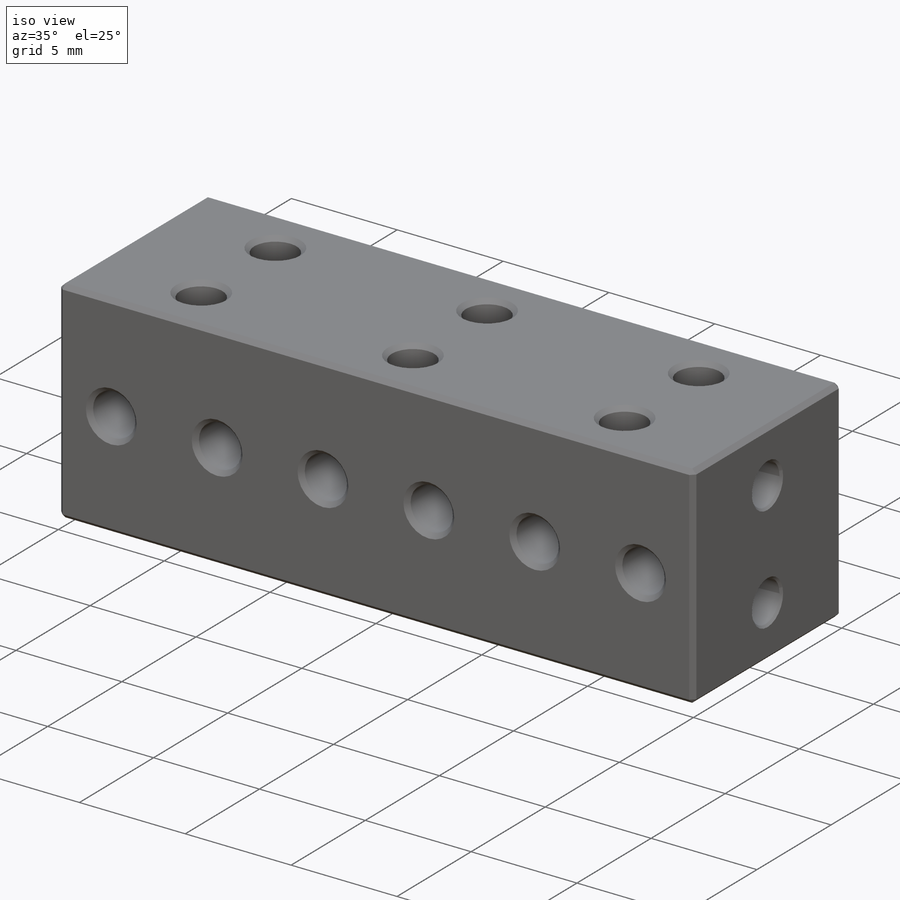
[diagram: iso view]
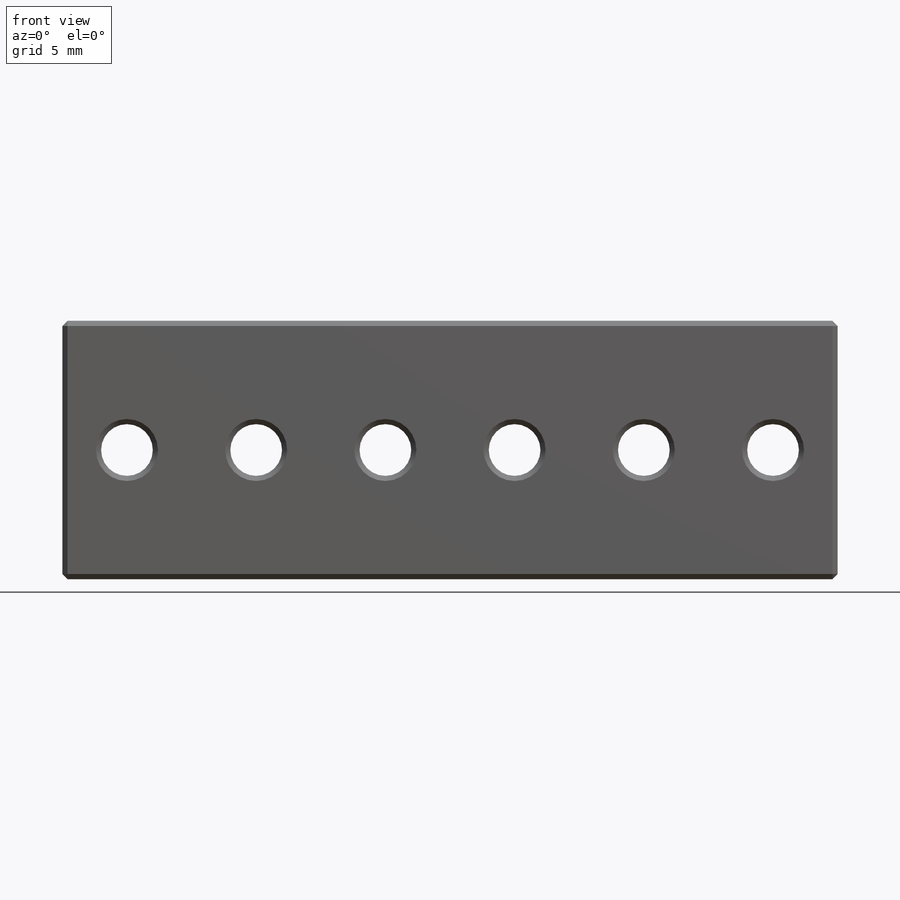
[diagram: front view]
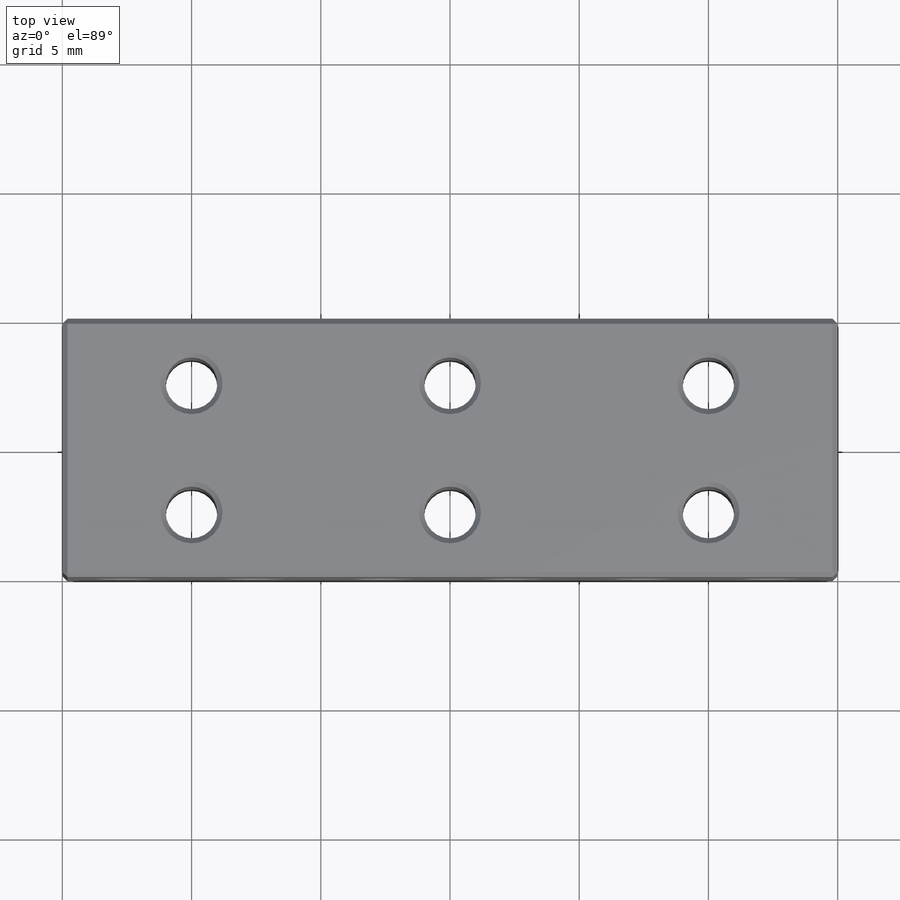
[diagram: top view]
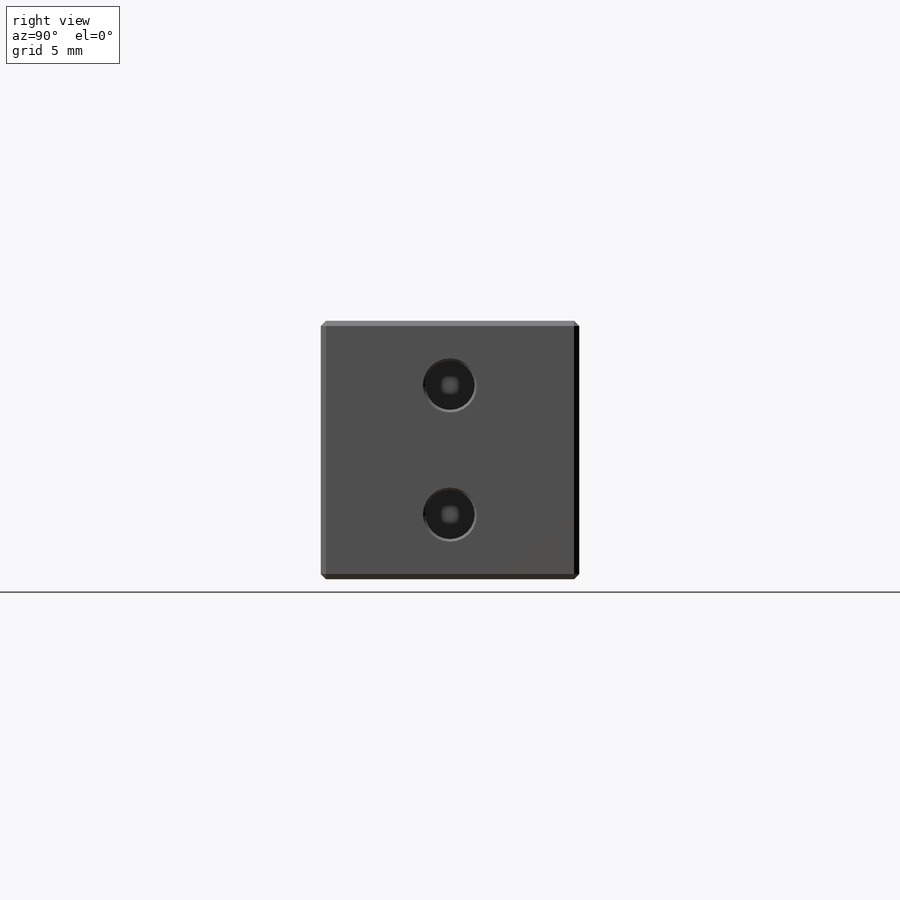
[diagram: right view]
SOLIDWORKS PART (.sldprt)
format: sldprt  version: not decoded by parser v0  size: 4,367,872 bytes
history: native  units: mm
features: sketch x4, cut_extrude x3, chamfer x3, thread x2, material x1, extrude x1, pattern_linear x1, mirror x1 (+11 scaffold rows collapsed)
feature tree (27):
  scaffold x11  (default folders/planes/origin — collapsed)
  material  "Material <not specified>"
  sketch  "Sketch1"  dims[D1=10.0mm]
  extrude  "Boss-Extrude1"  Depth=50mm
  sketch  "Sketch2"  dims[c1.D2=~2.291236mm c1.D1=5.0mm c2.D2=20.0mm]
  cut_extrude  "Cut-Extrude1"  [1 undecoded]
  sketch  "Sketch3"  dims[D1=5.0mm D2=20.0mm]
  cut_extrude  "Cut-Extrude2"  [1 undecoded]
  chamfer  "Chamfer1"  Distance=0.2mm Angle=45deg
  pattern_linear  "LPattern2"  Count1=5 Count2=1 Spacing1=10mm Spacing2=50mm
  sketch  "Sketch4"  dims[c1.D1=~1.549733mm c1.D2=1.9mm c2.D1=5.0mm]
  cut_extrude  "Cut-Extrude3"  [1 undecoded]
  thread  "Cosmetic Thread3"  Diameter=2mm  [1 undecoded]
  thread  "Cosmetic Thread4"  Diameter=2mm  [1 undecoded]
  mirror  "Mirror1"
  chamfer  "Chamfer2"  Distance=0.2mm Angle=45deg
  chamfer  "Chamfer3"  Distance=0.1mm Angle=45deg
decode coverage: 11 of 15 modeling features carry decoded parameters
note: ~ marks probable driven/reference dimensions
note: 5 parameter values undecoded
summary: no parameter record found for 3 features
note: suppression state not decoded; provenance and decode notes live in map.json
